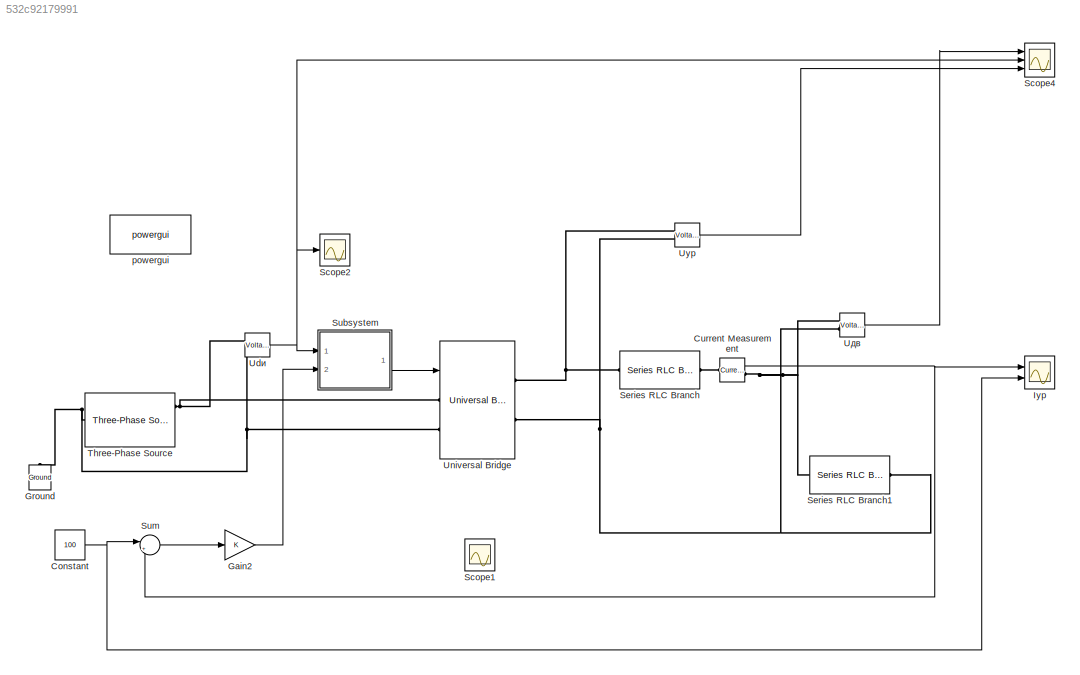
MODEL slx_532c92179991
KIND model
CONFIG AbsTol = auto
CONFIG EnableMultiTasking = off
CONFIG FixedStep = auto
CONFIG MaxStep = 1e-4
CONFIG MinStep = auto
CONFIG RelTol = 1e-3
CONFIG SampleTimeConstraint = Unconstrained
CONFIG Solver = FixedStepAuto
CONFIG SolverName = FixedStepAuto
CONFIG StartTime = 0.0
CONFIG StopTime = 1
BLOCK [Constant] Constant
  Value = 100
BLOCK [Reference] Current Measurement  REF=powerlib/Measurements/Current Measurement
  Ports = [0, 1, 0, 0, 0, 1, 1]
  SourceBlock = powerlib/Measurements/Current Measurement
  SourceProductBaseCode = PS
  SourceProductName = Simscape Electrical
  SourceType = Current Measurement
  UserDataPersistent = on
BLOCK [Gain] Gain2
  OutDataTypeStr = Inherit: Inherit via internal rule
  ParamDataTypeStr = Inherit: Inherit via internal rule
  SaturateOnIntegerOverflow = off
BLOCK [Reference] Ground  REF=powerlib/Elements/Ground
  Ports = [0, 0, 0, 0, 0, 1]
  SourceBlock = powerlib/Elements/Ground
  SourceProductBaseCode = PS
  SourceProductName = Simscape Electrical
  SourceType = Ground
BLOCK [Scope] Iур
  Floating = off
  NumInputPorts = 2
  Ports = [2]
  ScopeSpecificationString = Simulink.scopes.TimeScopeBlockCfg('CurrentConfiguration', extmgr.ConfigurationSet(extmgr.Configuration('Core','General UI',true,'FigureColor',[1 1 1]),extmgr.Configuration('Core','Source UI',true),extmgr.Configuration('Sources','WiredSimulink',true),extmgr.Configuration('Visuals','Time Domain',true,'SerializedDisplays',{struct('MinYLimReal','-13.64985','MaxYLimReal','122.84861','YLabelReal','','Mi...<+1669ch>
BLOCK [Scope] Scope1
  Floating = off
  NumInputPorts = 1
  Ports = [1]
  ScopeSpecificationString = Simulink.scopes.TimeScopeBlockCfg('CurrentConfiguration', extmgr.ConfigurationSet(extmgr.Configuration('Core','General UI',true,'FigureColor',[1 1 1]),extmgr.Configuration('Core','Source UI',true),extmgr.Configuration('Sources','WiredSimulink',true,'DataLoggingVariableName','ScopeData5'),extmgr.Configuration('Visuals','Time Domain',true,'SerializedDisplays',{struct('MinYLimReal','-11226.67409','Ma...<+1580ch>
BLOCK [Scope] Scope2
  Floating = off
  NumInputPorts = 1
  Ports = [1]
  ScopeSpecificationString = Simulink.scopes.TimeScopeBlockCfg('CurrentConfiguration', extmgr.ConfigurationSet(extmgr.Configuration('Core','General UI',true),extmgr.Configuration('Core','Source UI',true),extmgr.Configuration('Sources','WiredSimulink',true,'DataLoggingVariableName','ScopeData2'),extmgr.Configuration('Visuals','Time Domain',true,'SerializedDisplays',{struct('MinYLimReal','-387.83588','MaxYLimReal','387.83588','...<+1447ch>
BLOCK [Scope] Scope4
  Floating = off
  NumInputPorts = 3
  Ports = [3]
  ScopeSpecificationString = Simulink.scopes.TimeScopeBlockCfg('CurrentConfiguration', extmgr.ConfigurationSet(extmgr.Configuration('Core','General UI',true,'FigureColor',[1 1 1]),extmgr.Configuration('Core','Source UI',true),extmgr.Configuration('Sources','WiredSimulink',true,'DataLoggingVariableName','ScopeData3'),extmgr.Configuration('Visuals','Time Domain',true,'SerializedDisplays',{struct('MinYLimReal','-200.57336','MaxY...<+3373ch>
BLOCK [Reference] Series RLC Branch  REF=powerlib/Elements/Series RLC Branch
  Ports = [0, 0, 0, 0, 0, 1, 1]
  SourceBlock = powerlib/Elements/Series RLC Branch
  SourceProductBaseCode = PS
  SourceProductName = Simscape Electrical
  SourceType = Series RLC Branch
BLOCK [Reference] Series RLC Branch1  REF=powerlib/Elements/Series RLC Branch
  Ports = [0, 0, 0, 0, 0, 1, 1]
  SourceBlock = powerlib/Elements/Series RLC Branch
  SourceProductBaseCode = PS
  SourceProductName = Simscape Electrical
  SourceType = Series RLC Branch
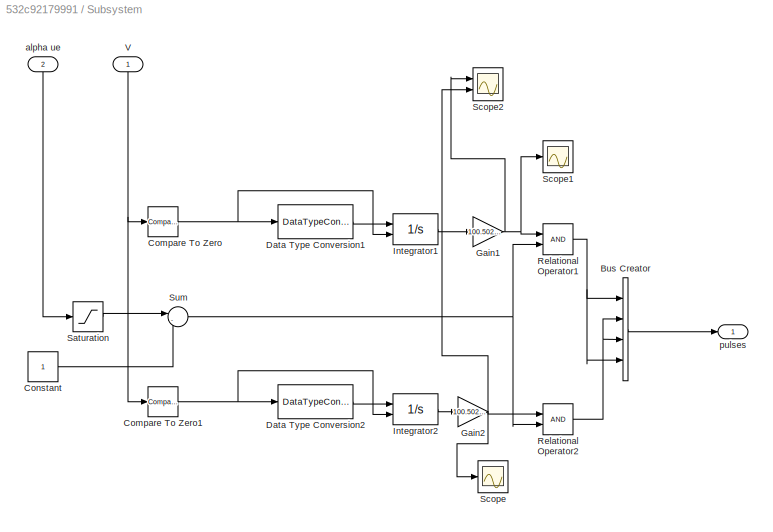
BLOCK [SubSystem] Subsystem
  Ports = [2, 1]
  RequestExecContextInheritance = off
BLOCK [BusCreator] Subsystem/Bus Creator
  DisplayOption = bar
  InheritFromInputs = on
  Inputs = 4
  Ports = [4, 1]
BLOCK [Reference] Subsystem/Compare To Zero  REF=simulink/Logic and Bit
Operations/Compare
To Zero
  Ports = [1, 1]
  SourceBlock = simulink/Logic and Bit\nOperations/Compare\nTo Zero
  SourceProductBaseCode = SL
  SourceProductName = Simulink
  SourceType = Compare To Zero
BLOCK [Reference] Subsystem/Compare To Zero1  REF=simulink/Logic and Bit
Operations/Compare
To Zero
  Ports = [1, 1]
  SourceBlock = simulink/Logic and Bit\nOperations/Compare\nTo Zero
  SourceProductBaseCode = SL
  SourceProductName = Simulink
  SourceType = Compare To Zero
BLOCK [Constant] Subsystem/Constant
BLOCK [DataTypeConversion] Subsystem/Data Type Conversion1
  OutDataTypeStr = double
  RndMeth = Floor
  SaturateOnIntegerOverflow = off
BLOCK [DataTypeConversion] Subsystem/Data Type Conversion2
  OutDataTypeStr = double
  RndMeth = Floor
  SaturateOnIntegerOverflow = off
BLOCK [Gain] Subsystem/Gain1
  Gain = 100.50251256
  OutDataTypeStr = Inherit: Inherit via internal rule
  ParamDataTypeStr = Inherit: Inherit via internal rule
  SaturateOnIntegerOverflow = off
BLOCK [Gain] Subsystem/Gain2
  Gain = 100.50251256
  OutDataTypeStr = Inherit: Inherit via internal rule
  ParamDataTypeStr = Inherit: Inherit via internal rule
  SaturateOnIntegerOverflow = off
BLOCK [Integrator] Subsystem/Integrator1
  ExternalReset = falling
  LimitOutput = on
  LowerSaturationLimit = 0
  Ports = [2, 1]
  UpperSaturationLimit = 1
BLOCK [Integrator] Subsystem/Integrator2
  ExternalReset = falling
  LimitOutput = on
  LowerSaturationLimit = 0
  Ports = [2, 1]
  UpperSaturationLimit = 1
BLOCK [RelationalOperator] Subsystem/Relational Operator1
  InputSameDT = off
  OutDataTypeStr = boolean
  Ports = [2, 1]
  RndMeth = Simplest
BLOCK [RelationalOperator] Subsystem/Relational Operator2
  InputSameDT = off
  OutDataTypeStr = boolean
  Ports = [2, 1]
  RndMeth = Simplest
BLOCK [Saturate] Subsystem/Saturation
  InputPortMap = u0
  LowerLimit = 0
  Ports = [1, 1]
  UpperLimit = 1
BLOCK [Scope] Subsystem/Scope
  Floating = off
  NumInputPorts = 1
  Ports = [1]
  ScopeSpecificationString = Simulink.scopes.TimeScopeBlockCfg('CurrentConfiguration', extmgr.ConfigurationSet(extmgr.Configuration('Core','General UI',true),extmgr.Configuration('Core','Source UI',true),extmgr.Configuration('Sources','WiredSimulink',true,'DataLoggingVariableName','ScopeData1'),extmgr.Configuration('Visuals','Time Domain',true,'SerializedDisplays',{struct('MinYLimReal','-0.125','MaxYLimReal','1.05724','YLabel...<+1379ch>
BLOCK [Scope] Subsystem/Scope1
  Floating = off
  NumInputPorts = 1
  Ports = [1]
  ScopeSpecificationString = Simulink.scopes.TimeScopeBlockCfg('CurrentConfiguration', extmgr.ConfigurationSet(extmgr.Configuration('Core','General UI',true),extmgr.Configuration('Core','Source UI',true),extmgr.Configuration('Sources','WiredSimulink',true,'DataLoggingVariableName','ScopeData2'),extmgr.Configuration('Visuals','Time Domain',true,'SerializedDisplays',{struct('MinYLimReal','-0.125','MaxYLimReal','1.04419','YLabel...<+1379ch>
BLOCK [Scope] Subsystem/Scope2
  Floating = off
  NumInputPorts = 2
  Ports = [2]
  ScopeSpecificationString = Simulink.scopes.TimeScopeBlockCfg('CurrentConfiguration', extmgr.ConfigurationSet(extmgr.Configuration('Core','General UI',true),extmgr.Configuration('Core','Source UI',true),extmgr.Configuration('Sources','WiredSimulink',true,'DataLoggingVariableName','ScopeData4'),extmgr.Configuration('Visuals','Time Domain',true,'SerializedDisplays',{struct('MinYLimReal','-0.09406','MaxYLimReal','1.08443','YLab...<+1418ch>
BLOCK [Sum] Subsystem/Sum
  IconShape = round
  InputSameDT = off
  Inputs = |-+
  OutDataTypeStr = Inherit: Inherit via internal rule
  Ports = [2, 1]
  SaturateOnIntegerOverflow = off
BLOCK [Inport] Subsystem/V
  IconDisplay = Port number
BLOCK [Inport] Subsystem/alpha ue
  IconDisplay = Port number
  Port = 2
BLOCK [Outport] Subsystem/pulses
  IconDisplay = Port number
BLOCK [Sum] Sum
  IconShape = round
  InputSameDT = off
  Inputs = |+-
  OutDataTypeStr = Inherit: Inherit via internal rule
  Ports = [2, 1]
  SaturateOnIntegerOverflow = off
BLOCK [Reference] Three-Phase Source  REF=powerlib/Electrical
Sources/Three-Phase Source
  Ports = [0, 0, 0, 0, 0, 1, 3]
  SourceBlock = powerlib/Electrical\nSources/Three-Phase Source
  SourceProductBaseCode = PS
  SourceProductName = Simscape Electrical
  SourceType = Three-Phase Source
BLOCK [Reference] Udи  REF=powerlib/Measurements/Voltage Measurement
  Ports = [0, 1, 0, 0, 0, 2]
  SourceBlock = powerlib/Measurements/Voltage Measurement
  SourceProductBaseCode = PS
  SourceProductName = Simscape Electrical
  SourceType = Voltage Measurement
  UserDataPersistent = on
BLOCK [Reference] Universal Bridge  REF=powerlib/Power
Electronics/Universal Bridge
  Ports = [1, 0, 0, 0, 0, 2, 2]
  SourceBlock = powerlib/Power\nElectronics/Universal Bridge
  SourceProductBaseCode = PS
  SourceProductName = Simscape Electrical
  SourceType = Universal Bridge
BLOCK [Reference] Uдв  REF=powerlib/Measurements/Voltage Measurement
  Ports = [0, 1, 0, 0, 0, 2]
  SourceBlock = powerlib/Measurements/Voltage Measurement
  SourceProductBaseCode = PS
  SourceProductName = Simscape Electrical
  SourceType = Voltage Measurement
  UserDataPersistent = on
BLOCK [Reference] Uур  REF=powerlib/Measurements/Voltage Measurement
  Ports = [0, 1, 0, 0, 0, 2]
  SourceBlock = powerlib/Measurements/Voltage Measurement
  SourceProductBaseCode = PS
  SourceProductName = Simscape Electrical
  SourceType = Voltage Measurement
  UserDataPersistent = on
BLOCK [Reference] powergui  REF=powerlib/powergui
  Ports = []
  Priority = 1
  SourceBlock = powerlib/powergui
  SourceProductBaseCode = PS
  SourceProductName = Simscape Electrical
  SourceType = PSB option menu block
NET Constant:1 -> Iур:2, Sum:1
NET Current Measurement:1 -> Iур:1, Sum:2
LINE Gain2:1 -> Subsystem:2
LINE Subsystem/Bus Creator:1 -> Subsystem/pulses:1
NET Subsystem/Compare To Zero1:1 -> Subsystem/Data Type Conversion2:1, Subsystem/Integrator2:2
NET Subsystem/Compare To Zero:1 -> Subsystem/Data Type Conversion1:1, Subsystem/Integrator1:2
LINE Subsystem/Constant:1 -> Subsystem/Sum:2
LINE Subsystem/Data Type Conversion1:1 -> Subsystem/Integrator1:1
LINE Subsystem/Data Type Conversion2:1 -> Subsystem/Integrator2:1
NET Subsystem/Gain1:1 -> Subsystem/Relational Operator1:1, Subsystem/Scope1:1, Subsystem/Scope2:1
NET Subsystem/Gain2:1 -> Subsystem/Relational Operator2:1, Subsystem/Scope2:2, Subsystem/Scope:1
LINE Subsystem/Integrator1:1 -> Subsystem/Gain1:1
LINE Subsystem/Integrator2:1 -> Subsystem/Gain2:1
NET Subsystem/Relational Operator1:1 -> Subsystem/Bus Creator:1, Subsystem/Bus Creator:4
NET Subsystem/Relational Operator2:1 -> Subsystem/Bus Creator:2, Subsystem/Bus Creator:3
LINE Subsystem/Saturation:1 -> Subsystem/Sum:1
NET Subsystem/Sum:1 -> Subsystem/Relational Operator1:2, Subsystem/Relational Operator2:2
NET Subsystem/V:1 -> Subsystem/Compare To Zero1:1, Subsystem/Compare To Zero:1
LINE Subsystem/alpha ue:1 -> Subsystem/Saturation:1
LINE Subsystem:1 -> Universal Bridge:1
LINE Sum:1 -> Gain2:1
NET Udи:1 -> Scope2:1, Scope4:2, Subsystem:1
LINE Uдв:1 -> Scope4:1
LINE Uур:1 -> Scope4:3
PLINE Current Measurement:LConn1 -- Series RLC Branch:RConn1
PNET net1: Current Measurement:RConn1 -- Series RLC Branch1:LConn1 -- Uдв:LConn1
PNET net2: Ground:LConn1 -- Three-Phase Source:LConn1 -- Udи:LConn2 -- Universal Bridge:LConn2
PNET net3: Series RLC Branch1:RConn1 -- Universal Bridge:RConn2 -- Uдв:LConn2 -- Uур:LConn2
PNET net4: Series RLC Branch:LConn1 -- Universal Bridge:RConn1 -- Uур:LConn1
PNET net5: Three-Phase Source:RConn1 -- Udи:LConn1 -- Universal Bridge:LConn1
note: NET lines group one-source signal fan-out (src -> all destinations, sorted); 1:1 wires keep LINE; PNET lines group multi-terminal physical nets as a canonical sorted terminal list (undirected conserving connections); 2-terminal nets keep the pairwise PLINE form
